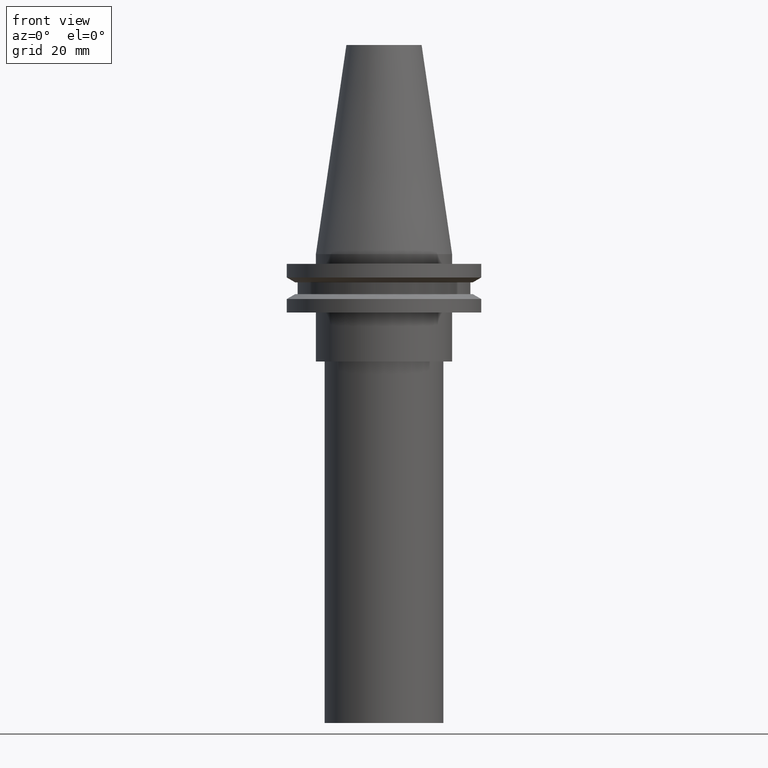
[diagram: clean part render]
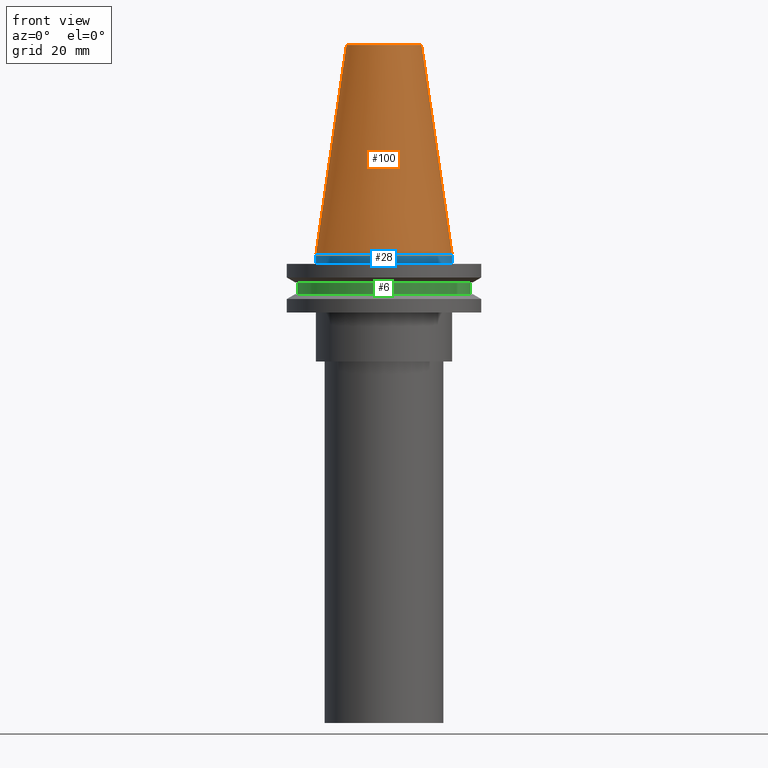
[diagram: same view with three faces highlighted in distinct colors, each labeled with its STEP entity id]
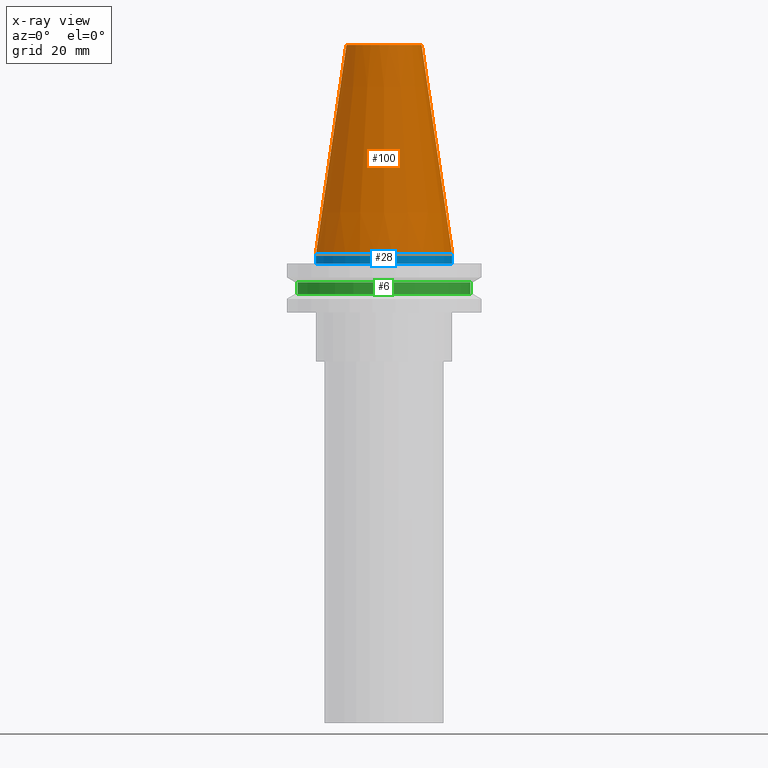
[diagram: x-ray of the same camera — body ghosted, the three highlighted faces saturated]
A machine part, front view with three faces highlighted in distinct colors.
The next image is the same camera in x-ray (body ghosted, the three faces saturated) — at least one of them is partly hidden behind the body in this view.
Their STEP definitions:

[orange] entity #100 — the highlighted conical surface has half-angle 8.297 deg.
#4 = CARTESIAN_POINT ( 'NONE',  ( 0.000000000000000000, 0.000000000000000000, 68.25000000000000000 ) ) ;
#9 = EDGE_LOOP ( 'NONE', ( #216 ) ) ;
#25 = FACE_OUTER_BOUND ( 'NONE', #9, .T. ) ;
#30 = DIRECTION ( 'NONE',  ( 1.000000000000000000, 0.000000000000000000, 0.000000000000000000 ) ) ;
#59 = EDGE_CURVE ( 'NONE', #130, #130, #391, .T. ) ;
#71 = CARTESIAN_POINT ( 'NONE',  ( 0.000000000000000000, 0.000000000000000000, 0.000000000000000000 ) ) ;
#100 = ADVANCED_FACE ( 'NONE', ( #237, #25 ), #309, .T. ) ;
#130 = VERTEX_POINT ( 'NONE', #193 ) ;
#157 = ORIENTED_EDGE ( 'NONE', *, *, #222, .F. ) ;
#169 = CARTESIAN_POINT ( 'NONE',  ( 0.000000000000000000, 0.000000000000000000, 0.000000000000000000 ) ) ;
#193 = CARTESIAN_POINT ( 'NONE',  ( 22.22500000000000142, 0.000000000000000000, 0.000000000000000000 ) ) ;
#201 = DIRECTION ( 'NONE',  ( 1.000000000000000000, 0.000000000000000000, 0.000000000000000000 ) ) ;
#216 = ORIENTED_EDGE ( 'NONE', *, *, #59, .T. ) ;
#222 = EDGE_CURVE ( 'NONE', #316, #316, #232, .T. ) ;
#232 = CIRCLE ( 'NONE', #284, 12.27178102086201150 ) ;
#237 = FACE_BOUND ( 'NONE', #242, .T. ) ;
#242 = EDGE_LOOP ( 'NONE', ( #157 ) ) ;
#264 = DIRECTION ( 'NONE',  ( 0.000000000000000000, 0.000000000000000000, -1.000000000000000000 ) ) ;
#284 = AXIS2_PLACEMENT_3D ( 'NONE', #4, #303, #30 ) ;
#303 = DIRECTION ( 'NONE',  ( -0.000000000000000000, -0.000000000000000000, 1.000000000000000000 ) ) ;
#309 = CONICAL_SURFACE ( 'NONE', #382, 22.22500000000000142, 0.1448138465474119174 ) ;
#315 = AXIS2_PLACEMENT_3D ( 'NONE', #169, #357, #201 ) ;
#316 = VERTEX_POINT ( 'NONE', #350 ) ;
#350 = CARTESIAN_POINT ( 'NONE',  ( 12.27178102086201150, 0.000000000000000000, 68.25000000000000000 ) ) ;
#357 = DIRECTION ( 'NONE',  ( -0.000000000000000000, -0.000000000000000000, 1.000000000000000000 ) ) ;
#382 = AXIS2_PLACEMENT_3D ( 'NONE', #71, #264, #392 ) ;
#391 = CIRCLE ( 'NONE', #315, 22.22500000000000142 ) ;
#392 = DIRECTION ( 'NONE',  ( -1.000000000000000000, 0.000000000000000000, 0.000000000000000000 ) ) ;

[blue] entity #28 — the highlighted cylindrical surface (bore or boss wall) has radius 22.225 mm, axis along (-0, -0, 1).
#28 = ADVANCED_FACE ( 'NONE', ( #171, #256 ), #394, .T. ) ;
#32 = CARTESIAN_POINT ( 'NONE',  ( 0.000000000000000000, 0.000000000000000000, -3.174999999999997158 ) ) ;
#33 = ORIENTED_EDGE ( 'NONE', *, *, #59, .F. ) ;
#59 = EDGE_CURVE ( 'NONE', #130, #130, #391, .T. ) ;
#76 = CARTESIAN_POINT ( 'NONE',  ( 22.22500000000000142, 0.000000000000000000, -3.174999999999997158 ) ) ;
#115 = CARTESIAN_POINT ( 'NONE',  ( 0.000000000000000000, 0.000000000000000000, 68.25000000000000000 ) ) ;
#130 = VERTEX_POINT ( 'NONE', #193 ) ;
#169 = CARTESIAN_POINT ( 'NONE',  ( 0.000000000000000000, 0.000000000000000000, 0.000000000000000000 ) ) ;
#171 = FACE_OUTER_BOUND ( 'NONE', #191, .T. ) ;
#184 = DIRECTION ( 'NONE',  ( 1.000000000000000000, 0.000000000000000000, 0.000000000000000000 ) ) ;
#191 = EDGE_LOOP ( 'NONE', ( #33 ) ) ;
#193 = CARTESIAN_POINT ( 'NONE',  ( 22.22500000000000142, 0.000000000000000000, 0.000000000000000000 ) ) ;
#199 = AXIS2_PLACEMENT_3D ( 'NONE', #115, #236, #328 ) ;
#201 = DIRECTION ( 'NONE',  ( 1.000000000000000000, 0.000000000000000000, 0.000000000000000000 ) ) ;
#236 = DIRECTION ( 'NONE',  ( -0.000000000000000000, -0.000000000000000000, 1.000000000000000000 ) ) ;
#249 = VERTEX_POINT ( 'NONE', #76 ) ;
#251 = EDGE_CURVE ( 'NONE', #249, #249, #260, .T. ) ;
#256 = FACE_OUTER_BOUND ( 'NONE', #379, .T. ) ;
#260 = CIRCLE ( 'NONE', #330, 22.22500000000000142 ) ;
#274 = DIRECTION ( 'NONE',  ( -0.000000000000000000, -0.000000000000000000, 1.000000000000000000 ) ) ;
#275 = ORIENTED_EDGE ( 'NONE', *, *, #251, .T. ) ;
#315 = AXIS2_PLACEMENT_3D ( 'NONE', #169, #357, #201 ) ;
#328 = DIRECTION ( 'NONE',  ( 1.000000000000000000, 0.000000000000000000, 0.000000000000000000 ) ) ;
#330 = AXIS2_PLACEMENT_3D ( 'NONE', #32, #274, #184 ) ;
#357 = DIRECTION ( 'NONE',  ( -0.000000000000000000, -0.000000000000000000, 1.000000000000000000 ) ) ;
#379 = EDGE_LOOP ( 'NONE', ( #275 ) ) ;
#391 = CIRCLE ( 'NONE', #315, 22.22500000000000142 ) ;
#394 = CYLINDRICAL_SURFACE ( 'NONE', #199, 22.22500000000000142 ) ;

[green] entity #6 — the highlighted cylindrical surface (bore or boss wall) has radius 28.18 mm, axis along (-0, -0, 1).
#6 = ADVANCED_FACE ( 'NONE', ( #152, #101 ), #223, .T. ) ;
#7 = AXIS2_PLACEMENT_3D ( 'NONE', #314, #53, #230 ) ;
#38 = CARTESIAN_POINT ( 'NONE',  ( 28.17999999999999972, 0.000000000000000000, -13.05499999999999794 ) ) ;
#40 = DIRECTION ( 'NONE',  ( 1.000000000000000000, 0.000000000000000000, 0.000000000000000000 ) ) ;
#41 = ORIENTED_EDGE ( 'NONE', *, *, #393, .T. ) ;
#42 = EDGE_CURVE ( 'NONE', #72, #72, #159, .T. ) ;
#53 = DIRECTION ( 'NONE',  ( -0.000000000000000000, -0.000000000000000000, 1.000000000000000000 ) ) ;
#65 = CARTESIAN_POINT ( 'NONE',  ( 0.000000000000000000, 0.000000000000000000, -13.05499999999999794 ) ) ;
#72 = VERTEX_POINT ( 'NONE', #318 ) ;
#86 = CIRCLE ( 'NONE', #239, 28.17999999999999972 ) ;
#93 = DIRECTION ( 'NONE',  ( 1.000000000000000000, 0.000000000000000000, 0.000000000000000000 ) ) ;
#97 = ORIENTED_EDGE ( 'NONE', *, *, #42, .F. ) ;
#101 = FACE_OUTER_BOUND ( 'NONE', #283, .T. ) ;
#106 = AXIS2_PLACEMENT_3D ( 'NONE', #346, #180, #93 ) ;
#152 = FACE_OUTER_BOUND ( 'NONE', #276, .T. ) ;
#159 = CIRCLE ( 'NONE', #7, 28.17999999999999972 ) ;
#180 = DIRECTION ( 'NONE',  ( -0.000000000000000000, -0.000000000000000000, 1.000000000000000000 ) ) ;
#223 = CYLINDRICAL_SURFACE ( 'NONE', #106, 28.17999999999999972 ) ;
#224 = DIRECTION ( 'NONE',  ( -0.000000000000000000, -0.000000000000000000, 1.000000000000000000 ) ) ;
#230 = DIRECTION ( 'NONE',  ( 1.000000000000000000, 0.000000000000000000, 0.000000000000000000 ) ) ;
#239 = AXIS2_PLACEMENT_3D ( 'NONE', #65, #224, #40 ) ;
#253 = VERTEX_POINT ( 'NONE', #38 ) ;
#276 = EDGE_LOOP ( 'NONE', ( #97 ) ) ;
#283 = EDGE_LOOP ( 'NONE', ( #41 ) ) ;
#314 = CARTESIAN_POINT ( 'NONE',  ( 0.000000000000000000, 0.000000000000000000, -9.204999999999991189 ) ) ;
#318 = CARTESIAN_POINT ( 'NONE',  ( 28.17999999999999972, 0.000000000000000000, -9.204999999999991189 ) ) ;
#346 = CARTESIAN_POINT ( 'NONE',  ( 0.000000000000000000, 0.000000000000000000, 68.25000000000000000 ) ) ;
#393 = EDGE_CURVE ( 'NONE', #253, #253, #86, .T. ) ;